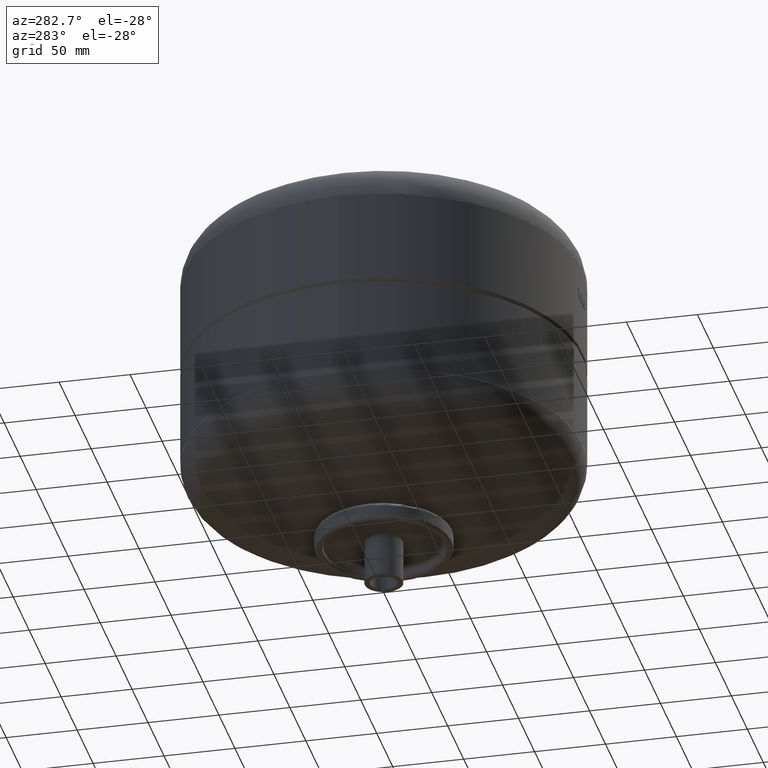
[diagram: clean part render]
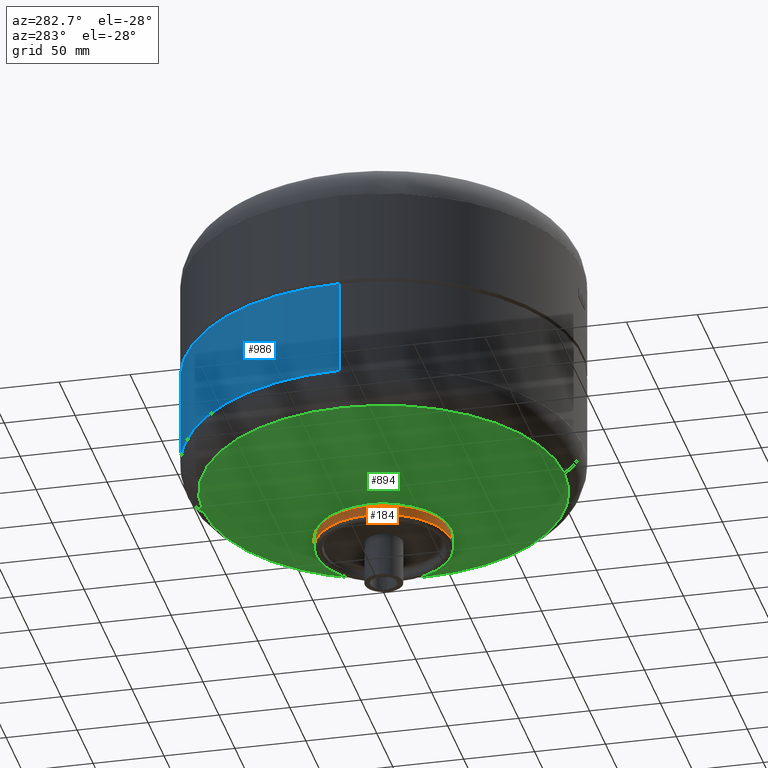
[diagram: same view with three faces highlighted in distinct colors, each labeled with its STEP entity id]
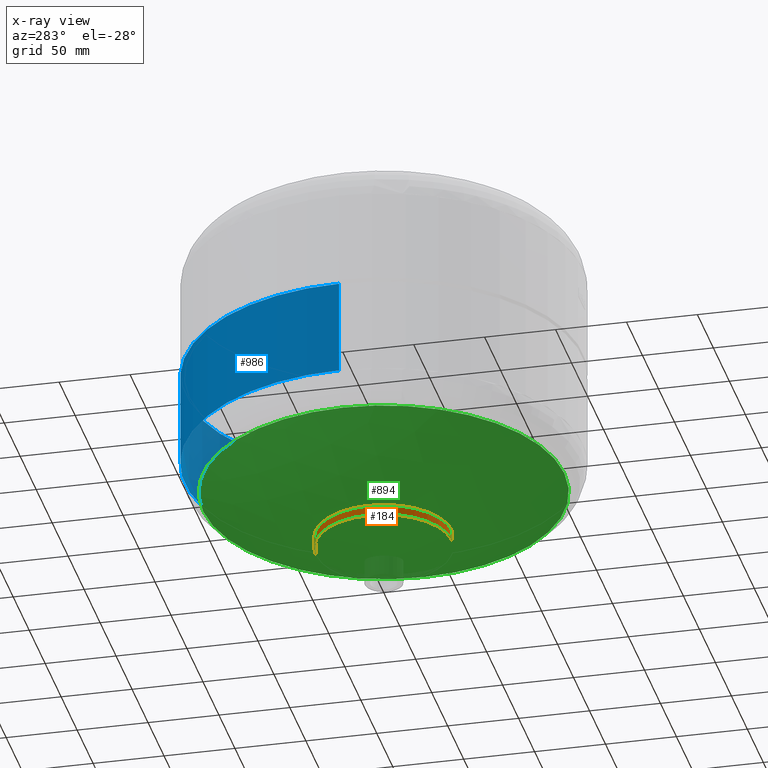
[diagram: x-ray of the same camera — body ghosted, the three highlighted faces saturated]
A machine part, auxiliary view with three faces highlighted in distinct colors.
The next image is the same camera in x-ray (body ghosted, the three faces saturated) — at least one of them is partly hidden behind the body in this view.
Their STEP definitions:

[orange] entity #184 — the highlighted cylindrical surface (partial cylindrical patch) has radius 48 mm, axis along (0, -0, -1).
#125=CARTESIAN_POINT('',(0.0,0.0,32.0));
#126=DIRECTION('',(0.0,-1.045403E-016,-1.0));
#127=DIRECTION('',(0.0,1.0,0.0));
#128=AXIS2_PLACEMENT_3D('',#125,#126,#127);
#129=CYLINDRICAL_SURFACE('',#128,48.000000000000007);
#130=CARTESIAN_POINT('',(0.0,48.0,27.999999999999993));
#131=VERTEX_POINT('',#130);
#132=CARTESIAN_POINT('',(0.0,48.0,35.000000000000007));
#133=VERTEX_POINT('',#132);
#134=CARTESIAN_POINT('',(0.0,48.0,27.999999999999993));
#135=DIRECTION('',(0.0,0.0,1.0));
#136=VECTOR('',#135,7.000000000000014);
#137=LINE('',#134,#136);
#138=EDGE_CURVE('',#131,#133,#137,.T.);
#139=ORIENTED_EDGE('',*,*,#138,.F.);
#140=CARTESIAN_POINT('',(-48.000000000000007,0.0,28.0));
#141=VERTEX_POINT('',#140);
#142=CARTESIAN_POINT('',(0.0,0.0,28.0));
#143=DIRECTION('',(0.0,0.0,-1.0));
#144=DIRECTION('',(0.0,1.0,0.0));
#145=AXIS2_PLACEMENT_3D('',#142,#143,#144);
#146=CIRCLE('',#145,48.000000000000007);
#147=EDGE_CURVE('',#141,#131,#146,.T.);
#148=ORIENTED_EDGE('',*,*,#147,.F.);
#149=CARTESIAN_POINT('',(-5.878110E-015,-48.000000000000007,28.0));
#150=VERTEX_POINT('',#149);
#151=CARTESIAN_POINT('',(0.0,0.0,28.0));
#152=DIRECTION('',(0.0,0.0,-1.0));
#153=DIRECTION('',(0.0,1.0,0.0));
#154=AXIS2_PLACEMENT_3D('',#151,#152,#153);
#155=CIRCLE('',#154,48.000000000000007);
#156=EDGE_CURVE('',#150,#141,#155,.T.);
#157=ORIENTED_EDGE('',*,*,#156,.F.);
#158=CARTESIAN_POINT('',(-5.878110E-015,-48.000000000000007,35.000000000000014));
#159=VERTEX_POINT('',#158);
#160=CARTESIAN_POINT('',(-5.878110E-015,-48.000000000000007,28.0));
#161=DIRECTION('',(0.0,0.0,1.0));
#162=VECTOR('',#161,7.000000000000014);
#163=LINE('',#160,#162);
#164=EDGE_CURVE('',#150,#159,#163,.T.);
#165=ORIENTED_EDGE('',*,*,#164,.T.);
#166=CARTESIAN_POINT('',(-48.000000000000007,0.0,35.000000000000007));
#167=VERTEX_POINT('',#166);
#168=CARTESIAN_POINT('',(0.0,0.0,35.000000000000007));
#169=DIRECTION('',(0.0,0.0,-1.0));
#170=DIRECTION('',(0.0,1.0,0.0));
#171=AXIS2_PLACEMENT_3D('',#168,#169,#170);
#172=CIRCLE('',#171,48.000000000000007);
#173=EDGE_CURVE('',#159,#167,#172,.T.);
#174=ORIENTED_EDGE('',*,*,#173,.T.);
#175=CARTESIAN_POINT('',(0.0,0.0,35.000000000000007));
#176=DIRECTION('',(0.0,0.0,-1.0));
#177=DIRECTION('',(0.0,1.0,0.0));
#178=AXIS2_PLACEMENT_3D('',#175,#176,#177);
#179=CIRCLE('',#178,48.000000000000007);
#180=EDGE_CURVE('',#167,#133,#179,.T.);
#181=ORIENTED_EDGE('',*,*,#180,.T.);
#182=EDGE_LOOP('',(#139,#148,#157,#165,#174,#181));
#183=FACE_OUTER_BOUND('',#182,.T.);
#184=ADVANCED_FACE('',(#183),#129,.T.);

[blue] entity #986 — the highlighted cylindrical surface (partial cylindrical patch) has radius 140 mm, axis along (0, 0, -1).
#945=CARTESIAN_POINT('',(0.0,0.0,98.0));
#946=DIRECTION('',(0.0,0.0,-1.0));
#947=DIRECTION('',(1.0,0.0,0.0));
#948=AXIS2_PLACEMENT_3D('',#945,#946,#947);
#949=CYLINDRICAL_SURFACE('',#948,139.999999999999910);
#950=CARTESIAN_POINT('',(139.999999999999910,0.0,93.0));
#951=VERTEX_POINT('',#950);
#952=CARTESIAN_POINT('',(139.999999999999970,0.0,160.499999999999970));
#953=VERTEX_POINT('',#952);
#954=CARTESIAN_POINT('',(139.999999999999910,0.0,93.0));
#955=DIRECTION('',(0.0,0.0,1.0));
#956=VECTOR('',#955,67.499999999999972);
#957=LINE('',#954,#956);
#958=EDGE_CURVE('',#951,#953,#957,.T.);
#959=ORIENTED_EDGE('',*,*,#958,.F.);
#960=CARTESIAN_POINT('',(-139.999999999999910,1.714449E-014,93.0));
#961=VERTEX_POINT('',#960);
#962=CARTESIAN_POINT('',(0.0,0.0,93.0));
#963=DIRECTION('',(0.0,0.0,1.0));
#964=DIRECTION('',(1.0,0.0,0.0));
#965=AXIS2_PLACEMENT_3D('',#962,#963,#964);
#966=CIRCLE('',#965,139.999999999999910);
#967=EDGE_CURVE('',#951,#961,#966,.T.);
#968=ORIENTED_EDGE('',*,*,#967,.T.);
#969=CARTESIAN_POINT('',(-139.999999999999910,1.714449E-014,160.499999999999970));
#970=VERTEX_POINT('',#969);
#971=CARTESIAN_POINT('',(-139.999999999999910,1.714449E-014,93.0));
#972=DIRECTION('',(0.0,0.0,1.0));
#973=VECTOR('',#972,67.499999999999972);
#974=LINE('',#971,#973);
#975=EDGE_CURVE('',#961,#970,#974,.T.);
#976=ORIENTED_EDGE('',*,*,#975,.T.);
#977=CARTESIAN_POINT('',(0.0,0.0,160.499999999999970));
#978=DIRECTION('',(0.0,0.0,1.0));
#979=DIRECTION('',(1.0,0.0,0.0));
#980=AXIS2_PLACEMENT_3D('',#977,#978,#979);
#981=CIRCLE('',#980,139.999999999999970);
#982=EDGE_CURVE('',#953,#970,#981,.T.);
#983=ORIENTED_EDGE('',*,*,#982,.F.);
#984=EDGE_LOOP('',(#959,#968,#976,#983));
#985=FACE_OUTER_BOUND('',#984,.T.);
#986=ADVANCED_FACE('',(#985),#949,.T.);

[green] entity #894 — the highlighted spherical surface has radius 258 mm.
#833=CARTESIAN_POINT('',(3.355614E-015,-127.339055793991430,70.614695513510171));
#834=VERTEX_POINT('',#833);
#850=CARTESIAN_POINT('',(-1.223841E-014,127.339055793991430,70.614695513510227));
#851=VERTEX_POINT('',#850);
#859=CARTESIAN_POINT('',(-127.339055793991450,4.112114E-015,70.614695513510213));
#860=VERTEX_POINT('',#859);
#861=CARTESIAN_POINT('',(-4.148636E-015,4.112114E-015,70.614695513510199));
#862=DIRECTION('',(0.0,0.0,1.0));
#863=DIRECTION('',(-1.0,0.0,0.0));
#864=AXIS2_PLACEMENT_3D('',#861,#862,#863);
#865=CIRCLE('',#864,127.339055793991430);
#866=EDGE_CURVE('',#851,#860,#865,.T.);
#868=CARTESIAN_POINT('',(-4.148636E-015,4.112114E-015,70.614695513510199));
#869=DIRECTION('',(0.0,0.0,1.0));
#870=DIRECTION('',(-1.0,0.0,0.0));
#871=AXIS2_PLACEMENT_3D('',#868,#869,#870);
#872=CIRCLE('',#871,127.339055793991430);
#873=EDGE_CURVE('',#860,#834,#872,.T.);
#878=CARTESIAN_POINT('',(-4.947573E-014,-3.710680E-014,295.000000000000060));
#879=DIRECTION('',(0.0,-1.0,0.0));
#880=DIRECTION('',(1.0,0.0,0.0));
#881=AXIS2_PLACEMENT_3D('',#878,#879,#880);
#882=SPHERICAL_SURFACE('',#881,258.000000000000060);
#883=ORIENTED_EDGE('',*,*,#873,.F.);
#884=ORIENTED_EDGE('',*,*,#866,.F.);
#885=CARTESIAN_POINT('',(-4.148636E-015,4.112114E-015,70.614695513510199));
#886=DIRECTION('',(0.0,0.0,1.0));
#887=DIRECTION('',(-1.0,0.0,0.0));
#888=AXIS2_PLACEMENT_3D('',#885,#886,#887);
#889=CIRCLE('',#888,127.339055793991430);
#890=EDGE_CURVE('',#834,#851,#889,.T.);
#891=ORIENTED_EDGE('',*,*,#890,.F.);
#892=EDGE_LOOP('',(#883,#884,#891));
#893=FACE_OUTER_BOUND('',#892,.T.);
#894=ADVANCED_FACE('',(#893),#882,.T.);